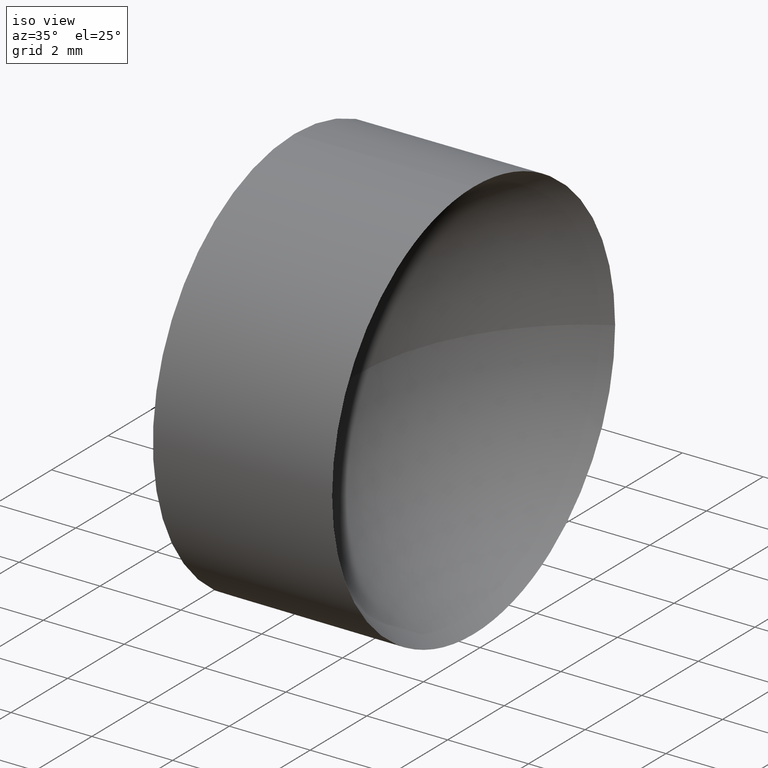
[diagram: clean part render]
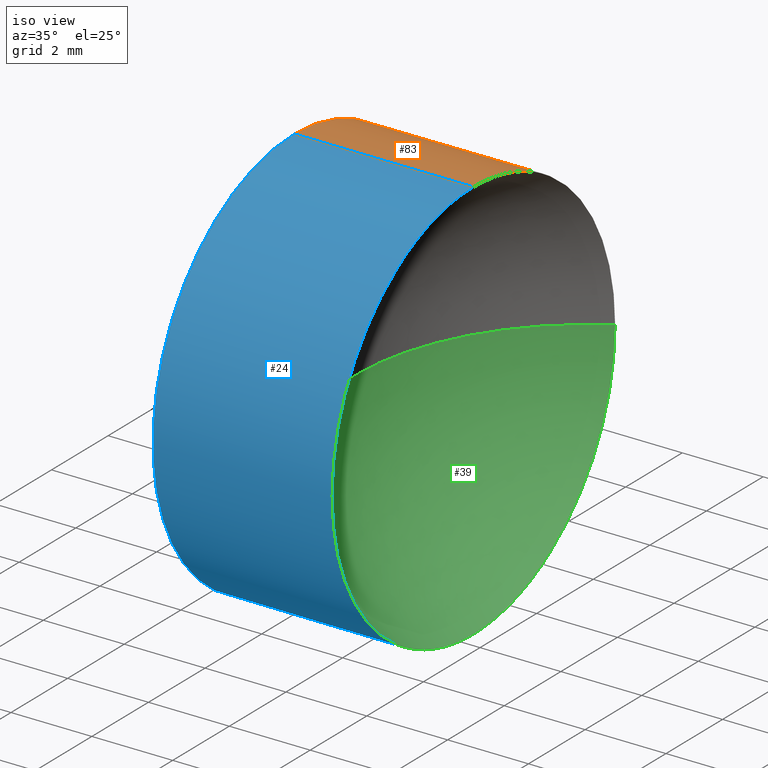
[diagram: same view with three faces highlighted in distinct colors, each labeled with its STEP entity id]
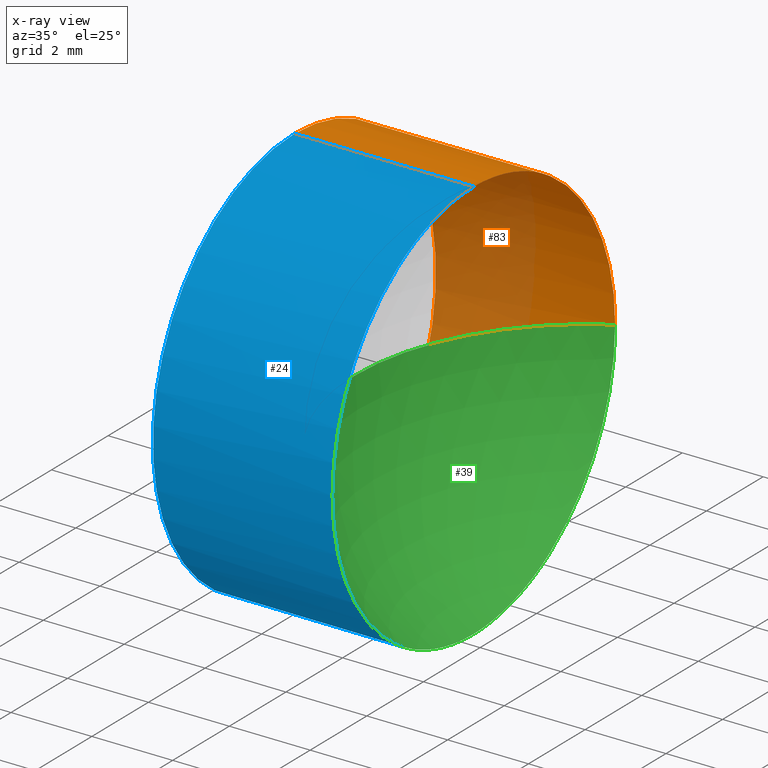
[diagram: x-ray of the same camera — body ghosted, the three highlighted faces saturated]
A machine part, iso view with three faces highlighted in distinct colors.
The next image is the same camera in x-ray (body ghosted, the three faces saturated) — at least one of them is partly hidden behind the body in this view.
Their STEP definitions:

[orange] entity #83 — the highlighted cylindrical surface (partial cylindrical patch) has radius 5 mm, axis along (-1, -0, -0).
#2 = AXIS2_PLACEMENT_3D ( 'NONE', #135, #167, #96 ) ;
#11 = AXIS2_PLACEMENT_3D ( 'NONE', #174, #186, #74 ) ;
#14 = VECTOR ( 'NONE', #177, 1000.000000000000000 ) ;
#18 = CARTESIAN_POINT ( 'NONE',  ( 39.73650001336414300, 26.06225218280608000, 0.0000000000000000000 ) ) ;
#19 = EDGE_CURVE ( 'NONE', #70, #58, #157, .T. ) ;
#27 = VERTEX_POINT ( 'NONE', #146 ) ;
#30 = VERTEX_POINT ( 'NONE', #56 ) ;
#31 = DIRECTION ( 'NONE',  ( -1.000000000000000000, -0.0000000000000000000, -0.0000000000000000000 ) ) ;
#36 = CIRCLE ( 'NONE', #2, 4.999999999999997300 ) ;
#40 = EDGE_CURVE ( 'NONE', #30, #58, #127, .T. ) ;
#41 = VERTEX_POINT ( 'NONE', #42 ) ;
#42 = CARTESIAN_POINT ( 'NONE',  ( 45.79830707391277400, 31.06225218280608000, 6.123233995736760400E-016 ) ) ;
#45 = EDGE_CURVE ( 'NONE', #27, #70, #103, .T. ) ;
#47 = DIRECTION ( 'NONE',  ( -1.000000000000000000, -0.0000000000000000000, -0.0000000000000000000 ) ) ;
#56 = CARTESIAN_POINT ( 'NONE',  ( 45.79830707391277400, 26.06225218280608000, -4.999999999999997300 ) ) ;
#58 = VERTEX_POINT ( 'NONE', #75 ) ;
#59 = AXIS2_PLACEMENT_3D ( 'NONE', #18, #60, #176 ) ;
#60 = DIRECTION ( 'NONE',  ( -1.000000000000000000, -0.0000000000000000000, -0.0000000000000000000 ) ) ;
#63 = DIRECTION ( 'NONE',  ( 0.0000000000000000000, 0.0000000000000000000, 1.000000000000000000 ) ) ;
#65 = ORIENTED_EDGE ( 'NONE', *, *, #40, .T. ) ;
#68 = EDGE_LOOP ( 'NONE', ( #91, #65, #132, #106, #170 ) ) ;
#70 = VERTEX_POINT ( 'NONE', #145 ) ;
#72 = CIRCLE ( 'NONE', #142, 4.999999999999997300 ) ;
#74 = DIRECTION ( 'NONE',  ( 0.0000000000000000000, 0.0000000000000000000, 1.000000000000000000 ) ) ;
#75 = CARTESIAN_POINT ( 'NONE',  ( 41.36582732549757700, 26.06225218280608000, -4.999999999999997300 ) ) ;
#83 = ADVANCED_FACE ( 'NONE', ( #150 ), #114, .T. ) ;
#91 = ORIENTED_EDGE ( 'NONE', *, *, #100, .T. ) ;
#96 = DIRECTION ( 'NONE',  ( 0.0000000000000000000, 0.0000000000000000000, 1.000000000000000000 ) ) ;
#100 = EDGE_CURVE ( 'NONE', #41, #30, #72, .T. ) ;
#103 = LINE ( 'NONE', #133, #14 ) ;
#106 = ORIENTED_EDGE ( 'NONE', *, *, #45, .F. ) ;
#107 = EDGE_CURVE ( 'NONE', #27, #41, #36, .T. ) ;
#114 = CYLINDRICAL_SURFACE ( 'NONE', #59, 4.999999999999997300 ) ;
#117 = VECTOR ( 'NONE', #31, 1000.000000000000000 ) ;
#118 = CARTESIAN_POINT ( 'NONE',  ( 39.73650001336414300, 26.06225218280608000, -4.999999999999997300 ) ) ;
#127 = LINE ( 'NONE', #118, #117 ) ;
#132 = ORIENTED_EDGE ( 'NONE', *, *, #19, .F. ) ;
#133 = CARTESIAN_POINT ( 'NONE',  ( 39.73650001336414300, 26.06225218280608000, 4.999999999999997300 ) ) ;
#135 = CARTESIAN_POINT ( 'NONE',  ( 45.79830707391277400, 26.06225218280608000, 0.0000000000000000000 ) ) ;
#142 = AXIS2_PLACEMENT_3D ( 'NONE', #181, #47, #63 ) ;
#145 = CARTESIAN_POINT ( 'NONE',  ( 41.36582732549757700, 26.06225218280608000, 4.999999999999997300 ) ) ;
#146 = CARTESIAN_POINT ( 'NONE',  ( 45.79830707391277400, 26.06225218280608000, 4.999999999999997300 ) ) ;
#150 = FACE_OUTER_BOUND ( 'NONE', #68, .T. ) ;
#157 = CIRCLE ( 'NONE', #11, 4.999999999999997300 ) ;
#167 = DIRECTION ( 'NONE',  ( -1.000000000000000000, -0.0000000000000000000, -0.0000000000000000000 ) ) ;
#170 = ORIENTED_EDGE ( 'NONE', *, *, #107, .T. ) ;
#174 = CARTESIAN_POINT ( 'NONE',  ( 41.36582732549757700, 26.06225218280608000, 0.0000000000000000000 ) ) ;
#176 = DIRECTION ( 'NONE',  ( 0.0000000000000000000, 0.0000000000000000000, 1.000000000000000000 ) ) ;
#177 = DIRECTION ( 'NONE',  ( -1.000000000000000000, -0.0000000000000000000, -0.0000000000000000000 ) ) ;
#181 = CARTESIAN_POINT ( 'NONE',  ( 45.79830707391277400, 26.06225218280608000, 0.0000000000000000000 ) ) ;
#186 = DIRECTION ( 'NONE',  ( -1.000000000000000000, -0.0000000000000000000, -0.0000000000000000000 ) ) ;

[blue] entity #24 — the highlighted cylindrical surface (partial cylindrical patch) has radius 5 mm, axis along (-1, -0, -0).
#4 = DIRECTION ( 'NONE',  ( -1.000000000000000000, -0.0000000000000000000, -0.0000000000000000000 ) ) ;
#5 = CARTESIAN_POINT ( 'NONE',  ( 45.79830707391277400, 26.06225218280608000, 0.0000000000000000000 ) ) ;
#7 = CARTESIAN_POINT ( 'NONE',  ( 41.36582732549757700, 26.06225218280608000, 0.0000000000000000000 ) ) ;
#8 = DIRECTION ( 'NONE',  ( 0.0000000000000000000, 0.0000000000000000000, 1.000000000000000000 ) ) ;
#14 = VECTOR ( 'NONE', #177, 1000.000000000000000 ) ;
#23 = ORIENTED_EDGE ( 'NONE', *, *, #45, .T. ) ;
#24 = ADVANCED_FACE ( 'NONE', ( #53 ), #90, .T. ) ;
#26 = ORIENTED_EDGE ( 'NONE', *, *, #131, .F. ) ;
#27 = VERTEX_POINT ( 'NONE', #146 ) ;
#30 = VERTEX_POINT ( 'NONE', #56 ) ;
#31 = DIRECTION ( 'NONE',  ( -1.000000000000000000, -0.0000000000000000000, -0.0000000000000000000 ) ) ;
#35 = DIRECTION ( 'NONE',  ( -1.000000000000000000, -0.0000000000000000000, -0.0000000000000000000 ) ) ;
#40 = EDGE_CURVE ( 'NONE', #30, #58, #127, .T. ) ;
#43 = CARTESIAN_POINT ( 'NONE',  ( 39.73650001336414300, 26.06225218280608000, 0.0000000000000000000 ) ) ;
#45 = EDGE_CURVE ( 'NONE', #27, #70, #103, .T. ) ;
#53 = FACE_OUTER_BOUND ( 'NONE', #184, .T. ) ;
#56 = CARTESIAN_POINT ( 'NONE',  ( 45.79830707391277400, 26.06225218280608000, -4.999999999999997300 ) ) ;
#57 = CARTESIAN_POINT ( 'NONE',  ( 45.79830707391277400, 26.06225218280608000, 0.0000000000000000000 ) ) ;
#58 = VERTEX_POINT ( 'NONE', #75 ) ;
#64 = CIRCLE ( 'NONE', #104, 4.999999999999997300 ) ;
#70 = VERTEX_POINT ( 'NONE', #145 ) ;
#73 = AXIS2_PLACEMENT_3D ( 'NONE', #7, #35, #108 ) ;
#75 = CARTESIAN_POINT ( 'NONE',  ( 41.36582732549757700, 26.06225218280608000, -4.999999999999997300 ) ) ;
#78 = EDGE_CURVE ( 'NONE', #120, #27, #168, .T. ) ;
#90 = CYLINDRICAL_SURFACE ( 'NONE', #126, 4.999999999999997300 ) ;
#97 = DIRECTION ( 'NONE',  ( -1.000000000000000000, -0.0000000000000000000, -0.0000000000000000000 ) ) ;
#102 = DIRECTION ( 'NONE',  ( 0.0000000000000000000, 0.0000000000000000000, 1.000000000000000000 ) ) ;
#103 = LINE ( 'NONE', #133, #14 ) ;
#104 = AXIS2_PLACEMENT_3D ( 'NONE', #5, #97, #8 ) ;
#105 = DIRECTION ( 'NONE',  ( 0.0000000000000000000, 0.0000000000000000000, 1.000000000000000000 ) ) ;
#108 = DIRECTION ( 'NONE',  ( 0.0000000000000000000, 0.0000000000000000000, 1.000000000000000000 ) ) ;
#117 = VECTOR ( 'NONE', #31, 1000.000000000000000 ) ;
#118 = CARTESIAN_POINT ( 'NONE',  ( 39.73650001336414300, 26.06225218280608000, -4.999999999999997300 ) ) ;
#120 = VERTEX_POINT ( 'NONE', #137 ) ;
#126 = AXIS2_PLACEMENT_3D ( 'NONE', #43, #4, #102 ) ;
#127 = LINE ( 'NONE', #118, #117 ) ;
#129 = CIRCLE ( 'NONE', #73, 4.999999999999997300 ) ;
#131 = EDGE_CURVE ( 'NONE', #58, #70, #129, .T. ) ;
#133 = CARTESIAN_POINT ( 'NONE',  ( 39.73650001336414300, 26.06225218280608000, 4.999999999999997300 ) ) ;
#137 = CARTESIAN_POINT ( 'NONE',  ( 45.79830707391277400, 21.06225218280608800, 0.0000000000000000000 ) ) ;
#139 = EDGE_CURVE ( 'NONE', #30, #120, #64, .T. ) ;
#140 = ORIENTED_EDGE ( 'NONE', *, *, #40, .F. ) ;
#143 = ORIENTED_EDGE ( 'NONE', *, *, #78, .T. ) ;
#145 = CARTESIAN_POINT ( 'NONE',  ( 41.36582732549757700, 26.06225218280608000, 4.999999999999997300 ) ) ;
#146 = CARTESIAN_POINT ( 'NONE',  ( 45.79830707391277400, 26.06225218280608000, 4.999999999999997300 ) ) ;
#155 = ORIENTED_EDGE ( 'NONE', *, *, #139, .T. ) ;
#160 = DIRECTION ( 'NONE',  ( -1.000000000000000000, -0.0000000000000000000, -0.0000000000000000000 ) ) ;
#164 = AXIS2_PLACEMENT_3D ( 'NONE', #57, #160, #105 ) ;
#168 = CIRCLE ( 'NONE', #164, 4.999999999999997300 ) ;
#177 = DIRECTION ( 'NONE',  ( -1.000000000000000000, -0.0000000000000000000, -0.0000000000000000000 ) ) ;
#184 = EDGE_LOOP ( 'NONE', ( #140, #155, #143, #23, #26 ) ) ;

[green] entity #39 — the highlighted spherical surface has radius 5.73 mm.
#5 = CARTESIAN_POINT ( 'NONE',  ( 45.79830707391277400, 26.06225218280608000, 0.0000000000000000000 ) ) ;
#8 = DIRECTION ( 'NONE',  ( 0.0000000000000000000, 0.0000000000000000000, 1.000000000000000000 ) ) ;
#12 = CIRCLE ( 'NONE', #115, 5.729999999999998600 ) ;
#15 = DIRECTION ( 'NONE',  ( 0.0000000000000000000, -1.000000000000000000, 0.0000000000000000000 ) ) ;
#17 = SPHERICAL_SURFACE ( 'NONE', #144, 5.729999999999997800 ) ;
#21 = CARTESIAN_POINT ( 'NONE',  ( 42.86703892959313600, 26.06225218280608400, 0.0000000000000000000 ) ) ;
#22 = DIRECTION ( 'NONE',  ( -1.000000000000000000, 0.0000000000000000000, 0.0000000000000000000 ) ) ;
#25 = AXIS2_PLACEMENT_3D ( 'NONE', #109, #46, #22 ) ;
#29 = FACE_OUTER_BOUND ( 'NONE', #98, .T. ) ;
#30 = VERTEX_POINT ( 'NONE', #56 ) ;
#33 = ORIENTED_EDGE ( 'NONE', *, *, #159, .T. ) ;
#39 = ADVANCED_FACE ( 'NONE', ( #29 ), #17, .F. ) ;
#41 = VERTEX_POINT ( 'NONE', #42 ) ;
#42 = CARTESIAN_POINT ( 'NONE',  ( 45.79830707391277400, 31.06225218280608000, 6.123233995736760400E-016 ) ) ;
#46 = DIRECTION ( 'NONE',  ( 0.0000000000000000000, 0.0000000000000000000, -1.000000000000000000 ) ) ;
#47 = DIRECTION ( 'NONE',  ( -1.000000000000000000, -0.0000000000000000000, -0.0000000000000000000 ) ) ;
#54 = ORIENTED_EDGE ( 'NONE', *, *, #116, .F. ) ;
#56 = CARTESIAN_POINT ( 'NONE',  ( 45.79830707391277400, 26.06225218280608000, -4.999999999999997300 ) ) ;
#63 = DIRECTION ( 'NONE',  ( 0.0000000000000000000, 0.0000000000000000000, 1.000000000000000000 ) ) ;
#64 = CIRCLE ( 'NONE', #104, 4.999999999999997300 ) ;
#72 = CIRCLE ( 'NONE', #142, 4.999999999999997300 ) ;
#81 = DIRECTION ( 'NONE',  ( 0.0000000000000000000, -1.224646799147353200E-016, 1.000000000000000000 ) ) ;
#94 = VERTEX_POINT ( 'NONE', #21 ) ;
#97 = DIRECTION ( 'NONE',  ( -1.000000000000000000, -0.0000000000000000000, -0.0000000000000000000 ) ) ;
#98 = EDGE_LOOP ( 'NONE', ( #113, #33, #54, #101 ) ) ;
#100 = EDGE_CURVE ( 'NONE', #41, #30, #72, .T. ) ;
#101 = ORIENTED_EDGE ( 'NONE', *, *, #139, .F. ) ;
#104 = AXIS2_PLACEMENT_3D ( 'NONE', #5, #97, #8 ) ;
#109 = CARTESIAN_POINT ( 'NONE',  ( 48.59703892959313300, 26.06225218280608400, 0.0000000000000000000 ) ) ;
#112 = CIRCLE ( 'NONE', #25, 5.729999999999998600 ) ;
#113 = ORIENTED_EDGE ( 'NONE', *, *, #100, .F. ) ;
#115 = AXIS2_PLACEMENT_3D ( 'NONE', #163, #81, #180 ) ;
#116 = EDGE_CURVE ( 'NONE', #120, #94, #112, .T. ) ;
#120 = VERTEX_POINT ( 'NONE', #137 ) ;
#121 = CARTESIAN_POINT ( 'NONE',  ( 48.59703892959313300, 26.06225218280608400, 0.0000000000000000000 ) ) ;
#137 = CARTESIAN_POINT ( 'NONE',  ( 45.79830707391277400, 21.06225218280608800, 0.0000000000000000000 ) ) ;
#139 = EDGE_CURVE ( 'NONE', #30, #120, #64, .T. ) ;
#142 = AXIS2_PLACEMENT_3D ( 'NONE', #181, #47, #63 ) ;
#144 = AXIS2_PLACEMENT_3D ( 'NONE', #121, #149, #15 ) ;
#149 = DIRECTION ( 'NONE',  ( 0.0000000000000000000, 0.0000000000000000000, 1.000000000000000000 ) ) ;
#159 = EDGE_CURVE ( 'NONE', #41, #94, #12, .T. ) ;
#163 = CARTESIAN_POINT ( 'NONE',  ( 48.59703892959313300, 26.06225218280608400, 0.0000000000000000000 ) ) ;
#180 = DIRECTION ( 'NONE',  ( 0.0000000000000000000, -1.000000000000000000, -1.224646799147353000E-016 ) ) ;
#181 = CARTESIAN_POINT ( 'NONE',  ( 45.79830707391277400, 26.06225218280608000, 0.0000000000000000000 ) ) ;